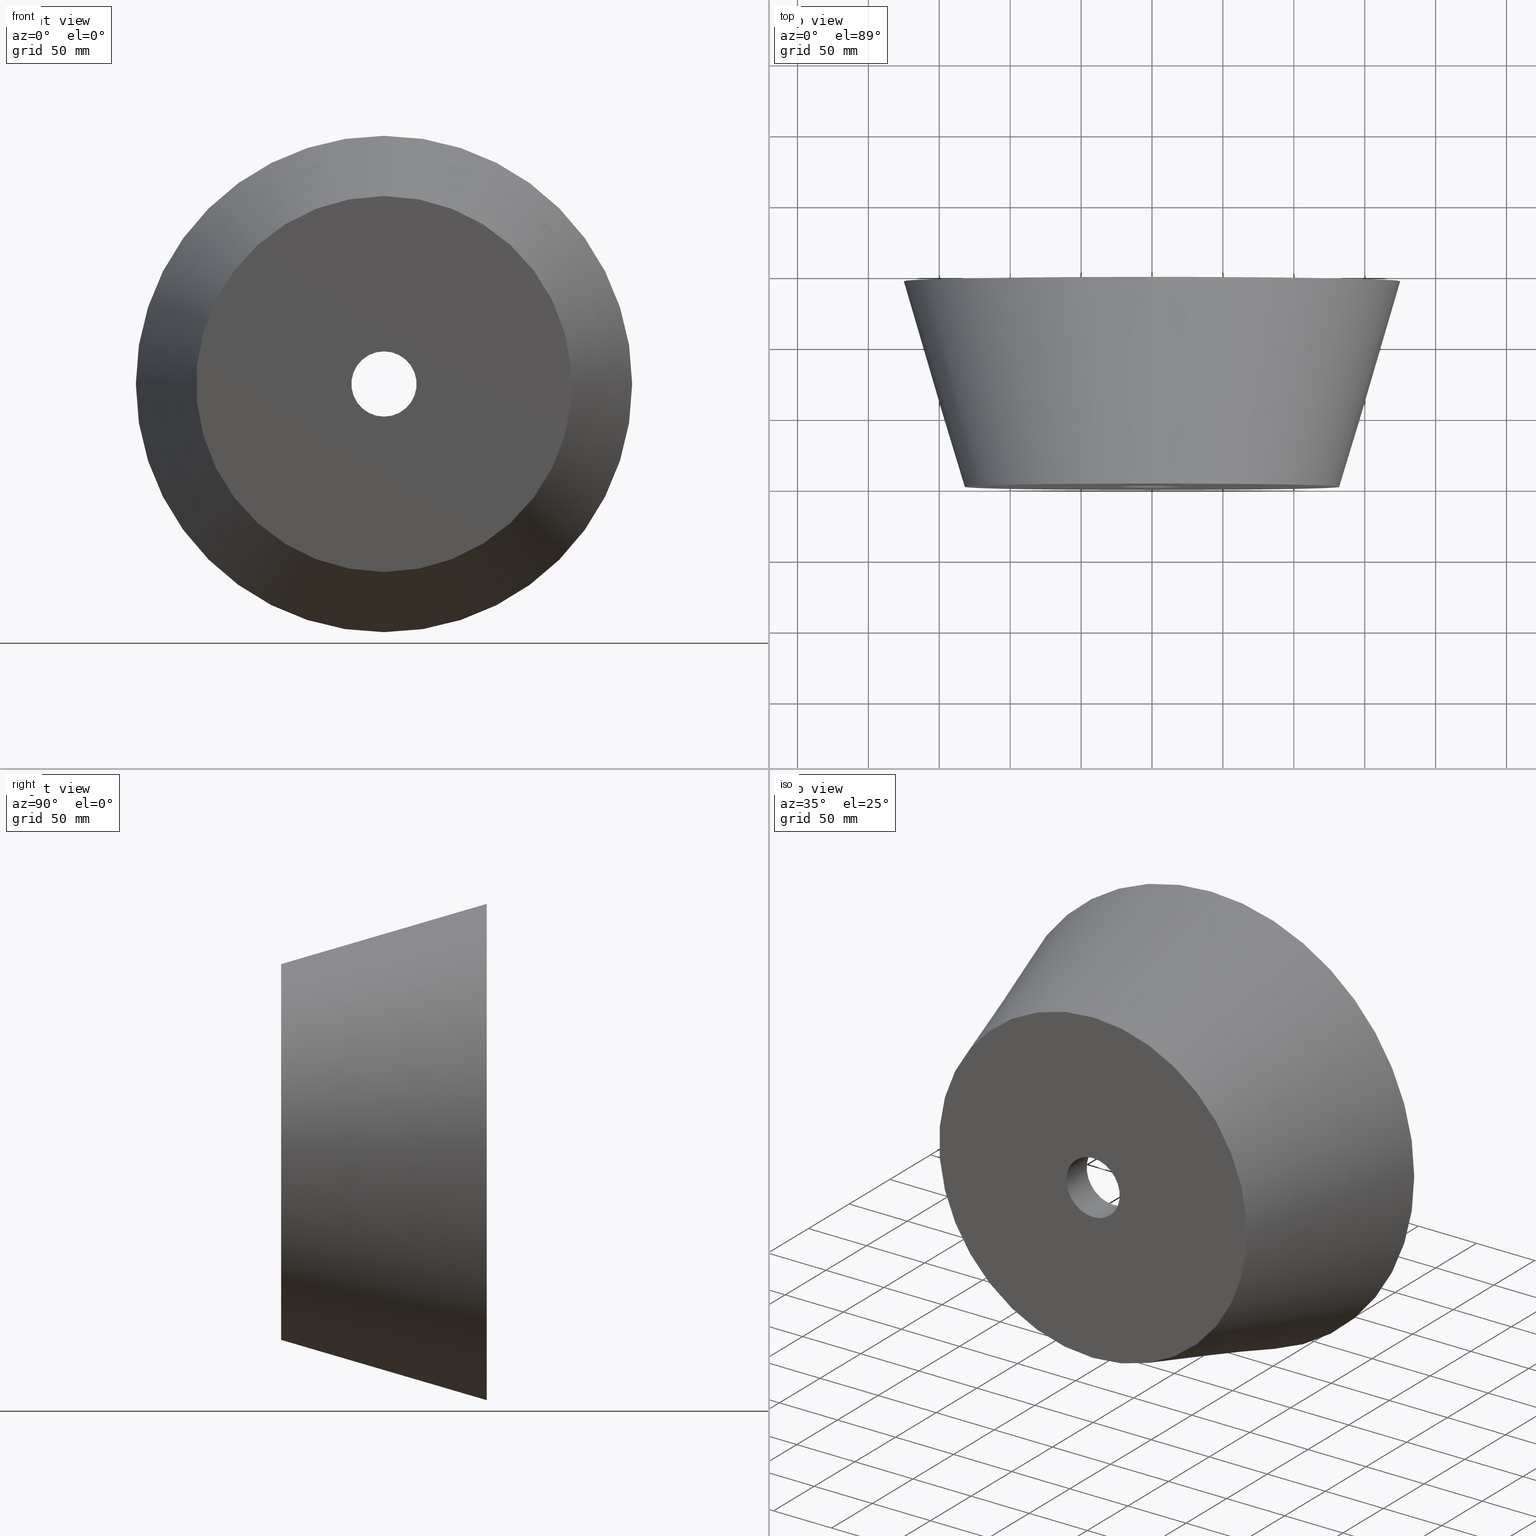
[diagram: canonical four-view strip — front | top / right | iso, engineering-drawing reading convention]
A machine part, canonical four-view strip (front | top / right | iso — engineering-drawing reading convention). The complete STEP part file that produces these views, byte-faithful:
ISO-10303-21;
HEADER;
FILE_DESCRIPTION (( 'STEP AP214' ),
    '1' );
FILE_NAME ('D601-SO.STEP',
    '2018-09-20T13:11:50',
    ( 'User' ),
    ( '' ),
    'SwSTEP 2.0',
    'SolidWorks 2017',
    '' );
FILE_SCHEMA (( 'AUTOMOTIVE_DESIGN' ));
ENDSEC;

DATA;
#1 = ORIENTED_EDGE ( 'NONE', *, *, #336, .F. ) ;
#2 = EDGE_CURVE ( 'NONE', #101, #279, #10, .T. ) ;
#3 = PRODUCT_CONTEXT ( 'NONE', #82, 'mechanical' ) ;
#4 = DIRECTION ( 'NONE',  ( 0.0000000000000000000, 0.0000000000000000000, -1.000000000000000000 ) ) ;
#5 = FACE_OUTER_BOUND ( 'NONE', #198, .T. ) ;
#6 = PRODUCT_DEFINITION_CONTEXT ( 'detailed design', #165, 'design' ) ;
#7 = EDGE_CURVE ( 'NONE', #34, #148, #341, .T. ) ;
#8 = CARTESIAN_POINT ( 'NONE',  ( 0.0000000000000000000, 0.0000000000000000000, 0.0000000000000000000 ) ) ;
#9 = DIRECTION ( 'NONE',  ( -0.0000000000000000000, -1.000000000000000000, -0.0000000000000000000 ) ) ;
#10 = LINE ( 'NONE', #24, #162 ) ;
#11 = CONICAL_SURFACE ( 'NONE', #99, 175.0000000000000000, 0.2851177351725961400 ) ;
#12 = COLOUR_RGB ( '',1.000000000000000000, 1.000000000000000000, 1.000000000000000000 ) ;
#13 = EDGE_CURVE ( 'NONE', #34, #154, #67, .T. ) ;
#14 = UNCERTAINTY_MEASURE_WITH_UNIT (LENGTH_MEASURE( 1.000000000000000100E-005 ), #230, 'distance_accuracy_value', 'NONE');
#15 = DIRECTION ( 'NONE',  ( 0.0000000000000000000, 0.0000000000000000000, -1.000000000000000000 ) ) ;
#16 = STYLED_ITEM ( 'NONE', ( #58 ), #275 ) ;
#17 = SURFACE_SIDE_STYLE ('',( #163 ) ) ;
#18 = DIRECTION ( 'NONE',  ( 0.0000000000000000000, 0.0000000000000000000, -1.000000000000000000 ) ) ;
#19 = CIRCLE ( 'NONE', #277, 152.4839111358805900 ) ;
#20 = AXIS2_PLACEMENT_3D ( 'NONE', #87, #216, #269 ) ;
#21 = PRODUCT_DEFINITION_CONTEXT ( 'detailed design', #324, 'design' ) ;
#22 = TOROIDAL_SURFACE ( 'NONE', #128, 6.803146923017686200, 160.0000000000000300 ) ;
#23 = ORIENTED_EDGE ( 'NONE', *, *, #212, .T. ) ;
#24 = CARTESIAN_POINT ( 'NONE',  ( 0.0000000000000000000, 25.00000000000001400, 23.00000000000000000 ) ) ;
#25 = ORIENTED_EDGE ( 'NONE', *, *, #106, .T. ) ;
#26 = ORIENTED_EDGE ( 'NONE', *, *, #108, .T. ) ;
#27 = PRODUCT ( 'D601-SO', 'D601-SO', '', ( #3 ) ) ;
#28 =( GEOMETRIC_REPRESENTATION_CONTEXT ( 3 ) GLOBAL_UNCERTAINTY_ASSIGNED_CONTEXT ( ( #133 ) ) GLOBAL_UNIT_ASSIGNED_CONTEXT ( ( #63, #328, #55 ) ) REPRESENTATION_CONTEXT ( 'NONE', 'WORKASPACE' ) );
#29 = ADVANCED_FACE ( 'NONE', ( #327 ), #229, .F. ) ;
#30 = PRODUCT_DEFINITION_SHAPE ( 'NONE', 'NONE',  #94 ) ;
#31 = FACE_OUTER_BOUND ( 'NONE', #350, .T. ) ;
#32 = EDGE_LOOP ( 'NONE', ( #238, #23, #233, #66 ) ) ;
#33 = APPLICATION_PROTOCOL_DEFINITION ( 'draft international standard', 'automotive_design', 1998, #165 ) ;
#34 = VERTEX_POINT ( 'NONE', #177 ) ;
#35 = PRESENTATION_LAYER_ASSIGNMENT (  '', '', ( #180 ) ) ;
#36 =( NAMED_UNIT ( * ) PLANE_ANGLE_UNIT ( ) SI_UNIT ( $, .RADIAN. ) );
#37 = ORIENTED_EDGE ( 'NONE', *, *, #240, .F. ) ;
#38 = CARTESIAN_POINT ( 'NONE',  ( 0.0000000000000000000, 0.0000000000000000000, 0.0000000000000000000 ) ) ;
#39 = DIRECTION ( 'NONE',  ( 0.0000000000000000000, 0.7071067811865487900, 0.7071067811865463500 ) ) ;
#40 = AXIS2_PLACEMENT_3D ( 'NONE', #224, #52, #352 ) ;
#41 = EDGE_CURVE ( 'NONE', #244, #154, #311, .T. ) ;
#42 = PRODUCT_RELATED_PRODUCT_CATEGORY ( 'part', '', ( #332 ) ) ;
#43 = DIRECTION ( 'NONE',  ( 0.0000000000000000000, 1.000000000000000000, 0.0000000000000000000 ) ) ;
#44 = DIRECTION ( 'NONE',  ( -0.0000000000000000000, -1.000000000000000000, -0.0000000000000000000 ) ) ;
#45 = DIRECTION ( 'NONE',  ( 1.000000000000000000, 0.0000000000000000000, -1.224646799147353200E-016 ) ) ;
#46 = ADVANCED_FACE ( 'NONE', ( #319 ), #157, .F. ) ;
#47 = ORIENTED_EDGE ( 'NONE', *, *, #251, .F. ) ;
#48 = AXIS2_PLACEMENT_3D ( 'NONE', #61, #45, #189 ) ;
#49 = EDGE_LOOP ( 'NONE', ( #80, #50, #167, #97 ) ) ;
#50 = ORIENTED_EDGE ( 'NONE', *, *, #317, .F. ) ;
#51 = CARTESIAN_POINT ( 'NONE',  ( -23.00000000000000400, 3.469446951953614200E-015, 0.0000000000000000000 ) ) ;
#52 = DIRECTION ( 'NONE',  ( -0.0000000000000000000, -1.000000000000000000, -0.0000000000000000000 ) ) ;
#53 = DIRECTION ( 'NONE',  ( 0.0000000000000000000, 0.0000000000000000000, -1.000000000000000000 ) ) ;
#54 = ADVANCED_FACE ( 'NONE', ( #268 ), #239, .T. ) ;
#55 =( NAMED_UNIT ( * ) SI_UNIT ( $, .STERADIAN. ) SOLID_ANGLE_UNIT ( ) );
#56 = ORIENTED_EDGE ( 'NONE', *, *, #141, .T. ) ;
#57 = LINE ( 'NONE', #215, #226 ) ;
#58 = PRESENTATION_STYLE_ASSIGNMENT (( #116 ) ) ;
#59 = MECHANICAL_DESIGN_GEOMETRIC_PRESENTATION_REPRESENTATION (  '', ( #16 ), #340 ) ;
#60 = DIRECTION ( 'NONE',  ( -0.0000000000000000000, -1.000000000000000000, -0.0000000000000000000 ) ) ;
#61 = CARTESIAN_POINT ( 'NONE',  ( 8.331452103402774300E-016, 191.1597682761677100, 6.803146923017686200 ) ) ;
#62 = CARTESIAN_POINT ( 'NONE',  ( 0.0000000000000000000, 124.9999999999999900, 0.0000000000000000000 ) ) ;
#63 =( LENGTH_UNIT ( ) NAMED_UNIT ( * ) SI_UNIT ( .MILLI., .METRE. ) );
#64 = PRODUCT_DEFINITION_FORMATION_WITH_SPECIFIED_SOURCE ( 'ANY', '', #332, .NOT_KNOWN. ) ;
#65 = DIRECTION ( 'NONE',  ( 0.0000000000000000000, 0.0000000000000000000, -1.000000000000000000 ) ) ;
#66 = ORIENTED_EDGE ( 'NONE', *, *, #273, .F. ) ;
#67 = CIRCLE ( 'NONE', #146, 37.07675705908988600 ) ;
#68 = DIRECTION ( 'NONE',  ( -0.0000000000000000000, -1.000000000000000000, -0.0000000000000000000 ) ) ;
#69 = CARTESIAN_POINT ( 'NONE',  ( 1.882894453689055400E-014, -3.469446951953614200E-015, -132.5000000000000000 ) ) ;
#70 = ADVANCED_FACE ( 'NONE', ( #353 ), #22, .F. ) ;
#71 = DIRECTION ( 'NONE',  ( 0.0000000000000000000, 1.000000000000000000, 0.0000000000000000000 ) ) ;
#72 = DIRECTION ( 'NONE',  ( -0.0000000000000000000, -1.000000000000000000, -0.0000000000000000000 ) ) ;
#73 = DIRECTION ( 'NONE',  ( -1.224646799147353200E-016, 0.0000000000000000000, -1.000000000000000000 ) ) ;
#74 = CARTESIAN_POINT ( 'NONE',  ( 0.0000000000000000000, -3.469446951953614200E-015, 132.5000000000000000 ) ) ;
#75 = DIRECTION ( 'NONE',  ( 0.0000000000000000000, 0.9596285438852135700, 0.2812704352767004800 ) ) ;
#76 = SURFACE_SIDE_STYLE ('',( #220 ) ) ;
#77 = PRESENTATION_LAYER_ASSIGNMENT (  '', '', ( #16 ) ) ;
#78 = ADVANCED_FACE ( 'NONE', ( #312 ), #326, .F. ) ;
#79 = VECTOR ( 'NONE', #75, 1000.000000000000100 ) ;
#80 = ORIENTED_EDGE ( 'NONE', *, *, #41, .F. ) ;
#81 = AXIS2_PLACEMENT_3D ( 'NONE', #302, #192, #73 ) ;
#82 = APPLICATION_CONTEXT ( 'automotive_design' ) ;
#83 = DIRECTION ( 'NONE',  ( 0.0000000000000000000, 0.0000000000000000000, 1.000000000000000000 ) ) ;
#84 = ADVANCED_FACE ( 'NONE', ( #5 ), #264, .T. ) ;
#85 = CARTESIAN_POINT ( 'NONE',  ( 0.0000000000000000000, 25.00000000000001400, 0.0000000000000000000 ) ) ;
#86 = UNCERTAINTY_MEASURE_WITH_UNIT (LENGTH_MEASURE( 1.000000000000000100E-005 ), #225, 'distance_accuracy_value', 'NONE');
#87 = CARTESIAN_POINT ( 'NONE',  ( 0.0000000000000000000, 1.040834085586084300E-014, 0.0000000000000000000 ) ) ;
#88 = ORIENTED_EDGE ( 'NONE', *, *, #13, .F. ) ;
#89 = EDGE_CURVE ( 'NONE', #333, #148, #174, .T. ) ;
#90 = ORIENTED_EDGE ( 'NONE', *, *, #273, .T. ) ;
#91 = DIRECTION ( 'NONE',  ( 0.0000000000000000000, 1.000000000000000000, 0.0000000000000000000 ) ) ;
#92 = DIRECTION ( 'NONE',  ( 8.659560562354918100E-017, 0.7071067811865487900, -0.7071067811865463500 ) ) ;
#93 = AXIS2_PLACEMENT_3D ( 'NONE', #179, #335, #4 ) ;
#94 = PRODUCT_DEFINITION ( 'UNKNOWN', '', #64, #21 ) ;
#95 = ORIENTED_EDGE ( 'NONE', *, *, #106, .F. ) ;
#96 = CARTESIAN_POINT ( 'NONE',  ( 2.816687638038912400E-015, 0.0000000000000000000, 23.00000000000000000 ) ) ;
#97 = ORIENTED_EDGE ( 'NONE', *, *, #150, .T. ) ;
#98 = EDGE_CURVE ( 'NONE', #107, #34, #122, .T. ) ;
#99 = AXIS2_PLACEMENT_3D ( 'NONE', #272, #91, #344 ) ;
#100 = AXIS2_PLACEMENT_3D ( 'NONE', #159, #286, #18 ) ;
#101 = VERTEX_POINT ( 'NONE', #325 ) ;
#102 = LINE ( 'NONE', #96, #261 ) ;
#103 = ORIENTED_EDGE ( 'NONE', *, *, #89, .T. ) ;
#104 = ADVANCED_FACE ( 'NONE', ( #199 ), #11, .T. ) ;
#105 = SURFACE_STYLE_USAGE ( .BOTH. , #76 ) ;
#106 = EDGE_CURVE ( 'NONE', #154, #247, #152, .T. ) ;
#107 = VERTEX_POINT ( 'NONE', #143 ) ;
#108 = EDGE_CURVE ( 'NONE', #279, #148, #263, .T. ) ;
#109 = DIRECTION ( 'NONE',  ( 0.0000000000000000000, 0.0000000000000000000, -1.000000000000000000 ) ) ;
#110 = FILL_AREA_STYLE_COLOUR ( '', #191 ) ;
#111 = ORIENTED_EDGE ( 'NONE', *, *, #141, .F. ) ;
#112 = CARTESIAN_POINT ( 'NONE',  ( 0.0000000000000000000, 109.6688146533680300, -186.2424755290236600 ) ) ;
#113 = EDGE_CURVE ( 'NONE', #244, #274, #217, .T. ) ;
#114 = DIRECTION ( 'NONE',  ( -0.0000000000000000000, -1.000000000000000000, -0.0000000000000000000 ) ) ;
#115 = DIRECTION ( 'NONE',  ( -0.0000000000000000000, -1.000000000000000000, -0.0000000000000000000 ) ) ;
#116 = SURFACE_STYLE_USAGE ( .BOTH. , #17 ) ;
#117 = CIRCLE ( 'NONE', #195, 23.00000000000000000 ) ;
#118 = EDGE_LOOP ( 'NONE', ( #271, #103, #207, #254 ) ) ;
#119 = DIRECTION ( 'NONE',  ( 0.0000000000000000000, 0.0000000000000000000, 1.000000000000000000 ) ) ;
#120 = CARTESIAN_POINT ( 'NONE',  ( 0.0000000000000000000, 25.00000000000001400, 0.0000000000000000000 ) ) ;
#121 = CARTESIAN_POINT ( 'NONE',  ( 0.0000000000000000000, 25.00000000000001400, 0.0000000000000000000 ) ) ;
#122 = CIRCLE ( 'NONE', #100, 152.4839111358805900 ) ;
#123 = ORIENTED_EDGE ( 'NONE', *, *, #235, .F. ) ;
#124 = ORIENTED_EDGE ( 'NONE', *, *, #113, .F. ) ;
#125 = EDGE_LOOP ( 'NONE', ( #123, #314, #329, #236 ) ) ;
#126 =( GEOMETRIC_REPRESENTATION_CONTEXT ( 3 ) GLOBAL_UNCERTAINTY_ASSIGNED_CONTEXT ( ( #86 ) ) GLOBAL_UNIT_ASSIGNED_CONTEXT ( ( #225, #259, #246 ) ) REPRESENTATION_CONTEXT ( 'NONE', 'WORKASPACE' ) );
#127 = APPLICATION_PROTOCOL_DEFINITION ( 'draft international standard', 'automotive_design', 1998, #82 ) ;
#128 = AXIS2_PLACEMENT_3D ( 'NONE', #343, #72, #309 ) ;
#129 = ORIENTED_EDGE ( 'NONE', *, *, #349, .T. ) ;
#130 = ADVANCED_BREP_SHAPE_REPRESENTATION ( 'D601-SO', ( #275, #138 ), #126 ) ;
#131 = CARTESIAN_POINT ( 'NONE',  ( 0.0000000000000000000, 0.0000000000000000000, 0.0000000000000000000 ) ) ;
#132 = FACE_OUTER_BOUND ( 'NONE', #125, .T. ) ;
#133 = UNCERTAINTY_MEASURE_WITH_UNIT (LENGTH_MEASURE( 1.000000000000000100E-005 ), #63, 'distance_accuracy_value', 'NONE');
#134 = APPLICATION_PROTOCOL_DEFINITION ( 'draft international standard', 'automotive_design', 1998, #149 ) ;
#135 = AXIS2_PLACEMENT_3D ( 'NONE', #285, #9, #15 ) ;
#136 = ORIENTED_EDGE ( 'NONE', *, *, #89, .F. ) ;
#137 = AXIS2_PLACEMENT_3D ( 'NONE', #338, #313, #315 ) ;
#138 = AXIS2_PLACEMENT_3D ( 'NONE', #131, #267, #330 ) ;
#139 = CARTESIAN_POINT ( 'NONE',  ( 0.0000000000000000000, 191.1597682761677100, 0.0000000000000000000 ) ) ;
#140 = CIRCLE ( 'NONE', #237, 175.0000000000000000 ) ;
#141 = EDGE_CURVE ( 'NONE', #333, #101, #298, .T. ) ;
#142 = DIRECTION ( 'NONE',  ( 0.0000000000000000000, 1.000000000000000000, 0.0000000000000000000 ) ) ;
#143 = CARTESIAN_POINT ( 'NONE',  ( 1.867389336940256900E-014, 124.9999999999999900, 152.4839111358806700 ) ) ;
#144 = DIRECTION ( 'NONE',  ( -0.0000000000000000000, -1.000000000000000000, -0.0000000000000000000 ) ) ;
#145 = ORIENTED_EDGE ( 'NONE', *, *, #227, .F. ) ;
#146 = AXIS2_PLACEMENT_3D ( 'NONE', #112, #201, #214 ) ;
#147 = CARTESIAN_POINT ( 'NONE',  ( 0.0000000000000000000, 144.9999999999999400, 0.0000000000000000000 ) ) ;
#148 = VERTEX_POINT ( 'NONE', #178 ) ;
#149 = APPLICATION_CONTEXT ( 'automotive_design' ) ;
#150 = EDGE_CURVE ( 'NONE', #247, #154, #140, .T. ) ;
#151 = EDGE_LOOP ( 'NONE', ( #145, #320, #346, #295 ) ) ;
#152 = CIRCLE ( 'NONE', #260, 175.0000000000000000 ) ;
#153 = DIRECTION ( 'NONE',  ( -0.0000000000000000000, -1.000000000000000000, -0.0000000000000000000 ) ) ;
#154 = VERTEX_POINT ( 'NONE', #292 ) ;
#155 = FACE_BOUND ( 'NONE', #187, .T. ) ;
#156 = EDGE_LOOP ( 'NONE', ( #193, #213 ) ) ;
#157 = CYLINDRICAL_SURFACE ( 'NONE', #93, 23.00000000000000000 ) ;
#158 = EDGE_CURVE ( 'NONE', #222, #166, #160, .T. ) ;
#159 = CARTESIAN_POINT ( 'NONE',  ( 0.0000000000000000000, 124.9999999999999900, 0.0000000000000000000 ) ) ;
#160 = CIRCLE ( 'NONE', #40, 23.00000000000000400 ) ;
#161 = CIRCLE ( 'NONE', #20, 23.00000000000000400 ) ;
#162 = VECTOR ( 'NONE', #39, 1000.000000000000000 ) ;
#163 = SURFACE_STYLE_FILL_AREA ( #290 ) ;
#164 = CARTESIAN_POINT ( 'NONE',  ( 1.123514922337969400E-014, 33.00000000000004300, 31.00000000000000000 ) ) ;
#165 = APPLICATION_CONTEXT ( 'automotive_design' ) ;
#166 = VERTEX_POINT ( 'NONE', #202 ) ;
#167 = ORIENTED_EDGE ( 'NONE', *, *, #251, .T. ) ;
#168 = AXIS2_PLACEMENT_3D ( 'NONE', #38, #170, #291 ) ;
#169 = ADVANCED_FACE ( 'NONE', ( #31 ), #316, .T. ) ;
#170 = DIRECTION ( 'NONE',  ( 0.0000000000000000000, 0.0000000000000000000, 1.000000000000000000 ) ) ;
#171 = CARTESIAN_POINT ( 'NONE',  ( 0.0000000000000000000, 109.6688146533680300, 0.0000000000000000000 ) ) ;
#172 = EDGE_LOOP ( 'NONE', ( #136, #56, #250, #37 ) ) ;
#173 = DIRECTION ( 'NONE',  ( -0.0000000000000000000, -1.000000000000000000, -0.0000000000000000000 ) ) ;
#174 = LINE ( 'NONE', #249, #265 ) ;
#175 = CARTESIAN_POINT ( 'NONE',  ( 0.0000000000000000000, 144.9999999999999400, 175.0000000000000000 ) ) ;
#176 = CARTESIAN_POINT ( 'NONE',  ( 0.0000000000000000000, 25.00000000000001400, -23.00000000000000000 ) ) ;
#177 = CARTESIAN_POINT ( 'NONE',  ( 0.0000000000000000000, 124.9999999999999900, -152.4839111358806700 ) ) ;
#178 = CARTESIAN_POINT ( 'NONE',  ( 0.0000000000000000000, 33.00000000000004300, -31.00000000000000000 ) ) ;
#179 = CARTESIAN_POINT ( 'NONE',  ( 0.0000000000000000000, 0.0000000000000000000, 0.0000000000000000000 ) ) ;
#180 = STYLED_ITEM ( 'NONE', ( #270 ), #130 ) ;
#181 = AXIS2_PLACEMENT_3D ( 'NONE', #294, #43, #234 ) ;
#182 = CARTESIAN_POINT ( 'NONE',  ( 0.0000000000000000000, -3.469446951953614200E-015, 0.0000000000000000000 ) ) ;
#183 = EDGE_CURVE ( 'NONE', #101, #333, #117, .T. ) ;
#184 = CIRCLE ( 'NONE', #137, 31.00000000000000000 ) ;
#185 = AXIS2_PLACEMENT_3D ( 'NONE', #278, #305, #186 ) ;
#186 = DIRECTION ( 'NONE',  ( 0.0000000000000000000, 0.0000000000000000000, -1.000000000000000000 ) ) ;
#187 = EDGE_LOOP ( 'NONE', ( #1, #339 ) ) ;
#188 = CLOSED_SHELL ( 'NONE', ( #29, #46, #84, #169, #70, #203, #54, #104, #200, #283, #78 ) ) ;
#189 = DIRECTION ( 'NONE',  ( -1.224646799147353200E-016, 0.0000000000000000000, -1.000000000000000000 ) ) ;
#190 = DIRECTION ( 'NONE',  ( 0.0000000000000000000, 0.0000000000000000000, -1.000000000000000000 ) ) ;
#191 = COLOUR_RGB ( '',1.000000000000000000, 1.000000000000000000, 1.000000000000000000 ) ;
#192 = DIRECTION ( 'NONE',  ( 1.000000000000000000, 0.0000000000000000000, -1.224646799147353200E-016 ) ) ;
#193 = ORIENTED_EDGE ( 'NONE', *, *, #317, .T. ) ;
#194 = PRODUCT_RELATED_PRODUCT_CATEGORY ( 'part', '', ( #27 ) ) ;
#195 = AXIS2_PLACEMENT_3D ( 'NONE', #321, #337, #255 ) ;
#196 = DIRECTION ( 'NONE',  ( 0.0000000000000000000, 0.0000000000000000000, -1.000000000000000000 ) ) ;
#197 = ORIENTED_EDGE ( 'NONE', *, *, #235, .T. ) ;
#198 = EDGE_LOOP ( 'NONE', ( #124, #323, #25, #47 ) ) ;
#199 = FACE_OUTER_BOUND ( 'NONE', #49, .T. ) ;
#200 = ADVANCED_FACE ( 'NONE', ( #155, #287 ), #231, .F. ) ;
#201 = DIRECTION ( 'NONE',  ( -1.000000000000000000, 0.0000000000000000000, 0.0000000000000000000 ) ) ;
#202 = CARTESIAN_POINT ( 'NONE',  ( 0.0000000000000000000, 1.040834085586084300E-014, -23.00000000000000400 ) ) ;
#203 = ADVANCED_FACE ( 'NONE', ( #132 ), #318, .F. ) ;
#204 = ORIENTED_EDGE ( 'NONE', *, *, #98, .F. ) ;
#205 =( NAMED_UNIT ( * ) SI_UNIT ( $, .STERADIAN. ) SOLID_ANGLE_UNIT ( ) );
#206 = CIRCLE ( 'NONE', #48, 160.0000000000000300 ) ;
#207 = ORIENTED_EDGE ( 'NONE', *, *, #108, .F. ) ;
#208 = FILL_AREA_STYLE ('',( #245 ) ) ;
#209 = PRODUCT_DEFINITION_FORMATION_WITH_SPECIFIED_SOURCE ( 'ANY', '', #27, .NOT_KNOWN. ) ;
#210 = CARTESIAN_POINT ( 'NONE',  ( 2.143131898507867900E-014, 144.9999999999999400, -175.0000000000000000 ) ) ;
#211 = DIRECTION ( 'NONE',  ( 0.0000000000000000000, 0.0000000000000000000, -1.000000000000000000 ) ) ;
#212 = EDGE_CURVE ( 'NONE', #101, #222, #102, .T. ) ;
#213 = ORIENTED_EDGE ( 'NONE', *, *, #113, .T. ) ;
#214 = DIRECTION ( 'NONE',  ( 0.0000000000000000000, 0.0000000000000000000, 1.000000000000000000 ) ) ;
#215 = CARTESIAN_POINT ( 'NONE',  ( 0.0000000000000000000, 0.0000000000000000000, -23.00000000000000000 ) ) ;
#216 = DIRECTION ( 'NONE',  ( -0.0000000000000000000, -1.000000000000000000, -0.0000000000000000000 ) ) ;
#217 = CIRCLE ( 'NONE', #288, 132.5000000000000000 ) ;
#218 = ORIENTED_EDGE ( 'NONE', *, *, #7, .F. ) ;
#219 = DIRECTION ( 'NONE',  ( 0.0000000000000000000, 1.000000000000000000, 0.0000000000000000000 ) ) ;
#220 = SURFACE_STYLE_FILL_AREA ( #208 ) ;
#221 = AXIS2_PLACEMENT_3D ( 'NONE', #8, #289, #306 ) ;
#222 = VERTEX_POINT ( 'NONE', #276 ) ;
#223 = DIRECTION ( 'NONE',  ( 0.0000000000000000000, 0.0000000000000000000, -1.000000000000000000 ) ) ;
#224 = CARTESIAN_POINT ( 'NONE',  ( 0.0000000000000000000, 1.040834085586084300E-014, 0.0000000000000000000 ) ) ;
#225 =( LENGTH_UNIT ( ) NAMED_UNIT ( * ) SI_UNIT ( .MILLI., .METRE. ) );
#226 = VECTOR ( 'NONE', #153, 1000.000000000000000 ) ;
#227 = EDGE_CURVE ( 'NONE', #107, #247, #228, .T. ) ;
#228 = CIRCLE ( 'NONE', #81, 37.07675705908988600 ) ;
#229 = CONICAL_SURFACE ( 'NONE', #297, 23.00000000000000000, 0.7853981633974466100 ) ;
#230 =( LENGTH_UNIT ( ) NAMED_UNIT ( * ) SI_UNIT ( .MILLI., .METRE. ) );
#231 = PLANE ( 'NONE',  #282 ) ;
#232 = AXIS2_PLACEMENT_3D ( 'NONE', #85, #142, #83 ) ;
#233 = ORIENTED_EDGE ( 'NONE', *, *, #158, .T. ) ;
#234 = DIRECTION ( 'NONE',  ( 0.0000000000000000000, 0.0000000000000000000, 1.000000000000000000 ) ) ;
#235 = EDGE_CURVE ( 'NONE', #107, #279, #206, .T. ) ;
#236 = ORIENTED_EDGE ( 'NONE', *, *, #240, .T. ) ;
#237 = AXIS2_PLACEMENT_3D ( 'NONE', #342, #144, #196 ) ;
#238 = ORIENTED_EDGE ( 'NONE', *, *, #183, .F. ) ;
#239 = TOROIDAL_SURFACE ( 'NONE', #135, 186.2424755290236600, 37.07675705908987900 ) ;
#240 = EDGE_CURVE ( 'NONE', #148, #279, #184, .T. ) ;
#241 = APPLICATION_PROTOCOL_DEFINITION ( 'draft international standard', 'automotive_design', 1998, #324 ) ;
#242 = DIRECTION ( 'NONE',  ( 3.444569382563940100E-017, 0.9596285438852135700, -0.2812704352767004800 ) ) ;
#243 = AXIS2_PLACEMENT_3D ( 'NONE', #262, #284, #299 ) ;
#244 = VERTEX_POINT ( 'NONE', #69 ) ;
#245 = FILL_AREA_STYLE_COLOUR ( '', #12 ) ;
#246 =( NAMED_UNIT ( * ) SI_UNIT ( $, .STERADIAN. ) SOLID_ANGLE_UNIT ( ) );
#247 = VERTEX_POINT ( 'NONE', #252 ) ;
#248 = DIRECTION ( 'NONE',  ( 0.0000000000000000000, -0.0000000000000000000, 1.000000000000000000 ) ) ;
#249 = CARTESIAN_POINT ( 'NONE',  ( 2.816687638038912400E-015, 25.00000000000001400, -23.00000000000000000 ) ) ;
#250 = ORIENTED_EDGE ( 'NONE', *, *, #2, .T. ) ;
#251 = EDGE_CURVE ( 'NONE', #274, #247, #348, .T. ) ;
#252 = CARTESIAN_POINT ( 'NONE',  ( 2.143131898507863200E-014, 144.9999999999999400, 174.9999999999996000 ) ) ;
#253 = EDGE_LOOP ( 'NONE', ( #258, #111, #90, #257 ) ) ;
#254 = ORIENTED_EDGE ( 'NONE', *, *, #2, .F. ) ;
#255 = DIRECTION ( 'NONE',  ( 0.0000000000000000000, 0.0000000000000000000, -1.000000000000000000 ) ) ;
#256 = AXIS2_PLACEMENT_3D ( 'NONE', #121, #300, #53 ) ;
#257 = ORIENTED_EDGE ( 'NONE', *, *, #336, .T. ) ;
#258 = ORIENTED_EDGE ( 'NONE', *, *, #212, .F. ) ;
#259 =( NAMED_UNIT ( * ) PLANE_ANGLE_UNIT ( ) SI_UNIT ( $, .RADIAN. ) );
#260 = AXIS2_PLACEMENT_3D ( 'NONE', #147, #68, #223 ) ;
#261 = VECTOR ( 'NONE', #310, 1000.000000000000000 ) ;
#262 = CARTESIAN_POINT ( 'NONE',  ( 0.0000000000000000000, 191.1597682761677100, -6.803146923017686200 ) ) ;
#263 = CIRCLE ( 'NONE', #185, 31.00000000000000000 ) ;
#264 = CONICAL_SURFACE ( 'NONE', #181, 175.0000000000000000, 0.2851177351725961400 ) ;
#265 = VECTOR ( 'NONE', #92, 1000.000000000000000 ) ;
#266 = AXIS2_PLACEMENT_3D ( 'NONE', #139, #115, #211 ) ;
#267 = DIRECTION ( 'NONE',  ( 0.0000000000000000000, 0.0000000000000000000, 1.000000000000000000 ) ) ;
#268 = FACE_OUTER_BOUND ( 'NONE', #151, .T. ) ;
#269 = DIRECTION ( 'NONE',  ( 0.0000000000000000000, 0.0000000000000000000, -1.000000000000000000 ) ) ;
#270 = PRESENTATION_STYLE_ASSIGNMENT (( #105 ) ) ;
#271 = ORIENTED_EDGE ( 'NONE', *, *, #183, .T. ) ;
#272 = CARTESIAN_POINT ( 'NONE',  ( 0.0000000000000000000, 144.9999999999999400, 0.0000000000000000000 ) ) ;
#273 = EDGE_CURVE ( 'NONE', #333, #166, #57, .T. ) ;
#274 = VERTEX_POINT ( 'NONE', #74 ) ;
#275 = MANIFOLD_SOLID_BREP ( 'Rotation1', #188 ) ;
#276 = CARTESIAN_POINT ( 'NONE',  ( 2.816687638038913100E-015, 1.040834085586084300E-014, 23.00000000000000400 ) ) ;
#277 = AXIS2_PLACEMENT_3D ( 'NONE', #62, #114, #303 ) ;
#278 = CARTESIAN_POINT ( 'NONE',  ( 0.0000000000000000000, 33.00000000000004300, 0.0000000000000000000 ) ) ;
#279 = VERTEX_POINT ( 'NONE', #164 ) ;
#280 = ORIENTED_EDGE ( 'NONE', *, *, #227, .T. ) ;
#281 = PRODUCT_DEFINITION_SHAPE ( 'NONE', 'NONE',  #331 ) ;
#282 = AXIS2_PLACEMENT_3D ( 'NONE', #51, #71, #248 ) ;
#283 = ADVANCED_FACE ( 'NONE', ( #296 ), #345, .F. ) ;
#284 = DIRECTION ( 'NONE',  ( -1.000000000000000000, 0.0000000000000000000, 0.0000000000000000000 ) ) ;
#285 = CARTESIAN_POINT ( 'NONE',  ( 0.0000000000000000000, 109.6688146533680300, 0.0000000000000000000 ) ) ;
#286 = DIRECTION ( 'NONE',  ( -0.0000000000000000000, -1.000000000000000000, -0.0000000000000000000 ) ) ;
#287 = FACE_OUTER_BOUND ( 'NONE', #156, .T. ) ;
#288 = AXIS2_PLACEMENT_3D ( 'NONE', #182, #44, #190 ) ;
#289 = DIRECTION ( 'NONE',  ( -0.0000000000000000000, -1.000000000000000000, -0.0000000000000000000 ) ) ;
#290 = FILL_AREA_STYLE ('',( #110 ) ) ;
#291 = DIRECTION ( 'NONE',  ( 1.000000000000000000, 0.0000000000000000000, 0.0000000000000000000 ) ) ;
#292 = CARTESIAN_POINT ( 'NONE',  ( 0.0000000000000000000, 144.9999999999999400, -174.9999999999996000 ) ) ;
#293 = MECHANICAL_DESIGN_GEOMETRIC_PRESENTATION_REPRESENTATION (  '', ( #180 ), #28 ) ;
#294 = CARTESIAN_POINT ( 'NONE',  ( 0.0000000000000000000, 144.9999999999999400, 0.0000000000000000000 ) ) ;
#295 = ORIENTED_EDGE ( 'NONE', *, *, #150, .F. ) ;
#296 = FACE_OUTER_BOUND ( 'NONE', #253, .T. ) ;
#297 = AXIS2_PLACEMENT_3D ( 'NONE', #120, #219, #119 ) ;
#298 = CIRCLE ( 'NONE', #256, 23.00000000000000000 ) ;
#299 = DIRECTION ( 'NONE',  ( 0.0000000000000000000, 0.0000000000000000000, 1.000000000000000000 ) ) ;
#300 = DIRECTION ( 'NONE',  ( -0.0000000000000000000, -1.000000000000000000, -0.0000000000000000000 ) ) ;
#301 = VECTOR ( 'NONE', #242, 1000.000000000000100 ) ;
#302 = CARTESIAN_POINT ( 'NONE',  ( 2.280812515218980900E-014, 109.6688146533680300, 186.2424755290236600 ) ) ;
#303 = DIRECTION ( 'NONE',  ( 0.0000000000000000000, 0.0000000000000000000, -1.000000000000000000 ) ) ;
#304 = AXIS2_PLACEMENT_3D ( 'NONE', #307, #60, #109 ) ;
#305 = DIRECTION ( 'NONE',  ( -0.0000000000000000000, -1.000000000000000000, -0.0000000000000000000 ) ) ;
#306 = DIRECTION ( 'NONE',  ( 0.0000000000000000000, 0.0000000000000000000, -1.000000000000000000 ) ) ;
#307 = CARTESIAN_POINT ( 'NONE',  ( 0.0000000000000000000, -3.469446951953614200E-015, 0.0000000000000000000 ) ) ;
#308 = EDGE_LOOP ( 'NONE', ( #204, #197, #26, #218 ) ) ;
#309 = DIRECTION ( 'NONE',  ( 0.0000000000000000000, 0.0000000000000000000, -1.000000000000000000 ) ) ;
#310 = DIRECTION ( 'NONE',  ( -0.0000000000000000000, -1.000000000000000000, -0.0000000000000000000 ) ) ;
#311 = LINE ( 'NONE', #210, #301 ) ;
#312 = FACE_OUTER_BOUND ( 'NONE', #172, .T. ) ;
#313 = DIRECTION ( 'NONE',  ( -0.0000000000000000000, -1.000000000000000000, -0.0000000000000000000 ) ) ;
#314 = ORIENTED_EDGE ( 'NONE', *, *, #349, .F. ) ;
#315 = DIRECTION ( 'NONE',  ( 0.0000000000000000000, 0.0000000000000000000, -1.000000000000000000 ) ) ;
#316 = TOROIDAL_SURFACE ( 'NONE', #347, 186.2424755290236600, 37.07675705908987900 ) ;
#317 = EDGE_CURVE ( 'NONE', #274, #244, #334, .T. ) ;
#318 = TOROIDAL_SURFACE ( 'NONE', #266, 6.803146923017686200, 160.0000000000000300 ) ;
#319 = FACE_OUTER_BOUND ( 'NONE', #32, .T. ) ;
#320 = ORIENTED_EDGE ( 'NONE', *, *, #98, .T. ) ;
#321 = CARTESIAN_POINT ( 'NONE',  ( 0.0000000000000000000, 25.00000000000001400, 0.0000000000000000000 ) ) ;
#322 = SHAPE_DEFINITION_REPRESENTATION ( #30, #130 ) ;
#323 = ORIENTED_EDGE ( 'NONE', *, *, #41, .T. ) ;
#324 = APPLICATION_CONTEXT ( 'automotive_design' ) ;
#325 = CARTESIAN_POINT ( 'NONE',  ( 2.816687638038912400E-015, 25.00000000000001400, 23.00000000000000000 ) ) ;
#326 = CONICAL_SURFACE ( 'NONE', #232, 23.00000000000000000, 0.7853981633974466100 ) ;
#327 = FACE_OUTER_BOUND ( 'NONE', #118, .T. ) ;
#328 =( NAMED_UNIT ( * ) PLANE_ANGLE_UNIT ( ) SI_UNIT ( $, .RADIAN. ) );
#329 = ORIENTED_EDGE ( 'NONE', *, *, #7, .T. ) ;
#330 = DIRECTION ( 'NONE',  ( 1.000000000000000000, 0.0000000000000000000, 0.0000000000000000000 ) ) ;
#331 = PRODUCT_DEFINITION ( 'UNKNOWN', '', #209, #6 ) ;
#332 = PRODUCT ( 'D601-SO', 'D601-SO', '', ( #351 ) ) ;
#333 = VERTEX_POINT ( 'NONE', #176 ) ;
#334 = CIRCLE ( 'NONE', #304, 132.5000000000000000 ) ;
#335 = DIRECTION ( 'NONE',  ( -0.0000000000000000000, -1.000000000000000000, -0.0000000000000000000 ) ) ;
#336 = EDGE_CURVE ( 'NONE', #166, #222, #161, .T. ) ;
#337 = DIRECTION ( 'NONE',  ( -0.0000000000000000000, -1.000000000000000000, -0.0000000000000000000 ) ) ;
#338 = CARTESIAN_POINT ( 'NONE',  ( 0.0000000000000000000, 33.00000000000004300, 0.0000000000000000000 ) ) ;
#339 = ORIENTED_EDGE ( 'NONE', *, *, #158, .F. ) ;
#340 =( GEOMETRIC_REPRESENTATION_CONTEXT ( 3 ) GLOBAL_UNCERTAINTY_ASSIGNED_CONTEXT ( ( #14 ) ) GLOBAL_UNIT_ASSIGNED_CONTEXT ( ( #230, #36, #205 ) ) REPRESENTATION_CONTEXT ( 'NONE', 'WORKASPACE' ) );
#341 = CIRCLE ( 'NONE', #243, 160.0000000000000300 ) ;
#342 = CARTESIAN_POINT ( 'NONE',  ( 0.0000000000000000000, 144.9999999999999400, 0.0000000000000000000 ) ) ;
#343 = CARTESIAN_POINT ( 'NONE',  ( 0.0000000000000000000, 191.1597682761677100, 0.0000000000000000000 ) ) ;
#344 = DIRECTION ( 'NONE',  ( 0.0000000000000000000, 0.0000000000000000000, 1.000000000000000000 ) ) ;
#345 = CYLINDRICAL_SURFACE ( 'NONE', #221, 23.00000000000000000 ) ;
#346 = ORIENTED_EDGE ( 'NONE', *, *, #13, .T. ) ;
#347 = AXIS2_PLACEMENT_3D ( 'NONE', #171, #173, #65 ) ;
#348 = LINE ( 'NONE', #175, #79 ) ;
#349 = EDGE_CURVE ( 'NONE', #34, #107, #19, .T. ) ;
#350 = EDGE_LOOP ( 'NONE', ( #129, #280, #95, #88 ) ) ;
#351 = PRODUCT_CONTEXT ( 'NONE', #149, 'mechanical' ) ;
#352 = DIRECTION ( 'NONE',  ( 0.0000000000000000000, 0.0000000000000000000, -1.000000000000000000 ) ) ;
#353 = FACE_OUTER_BOUND ( 'NONE', #308, .T. ) ;
ENDSEC;
END-ISO-10303-21;
